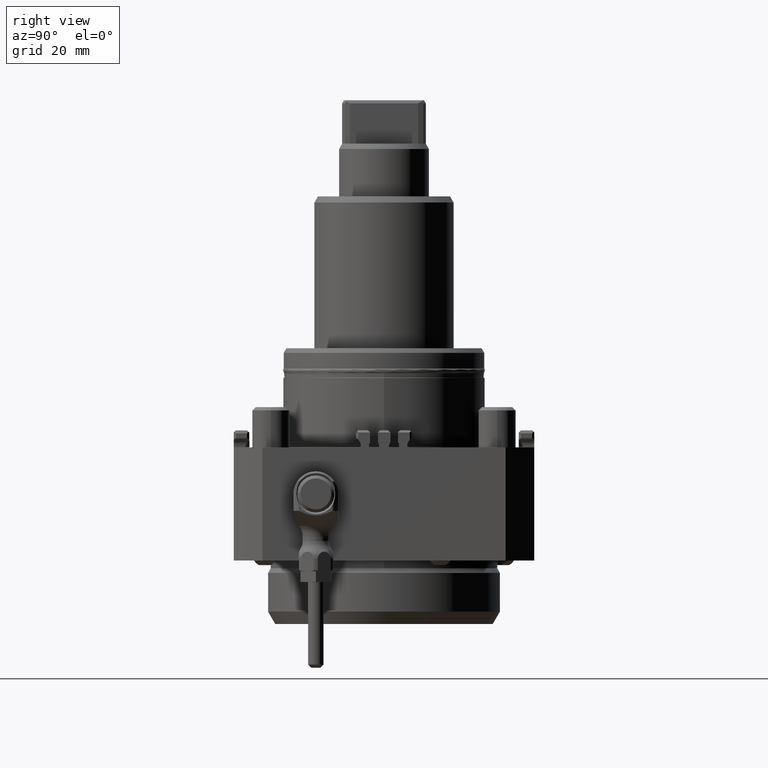
[diagram: clean part render]
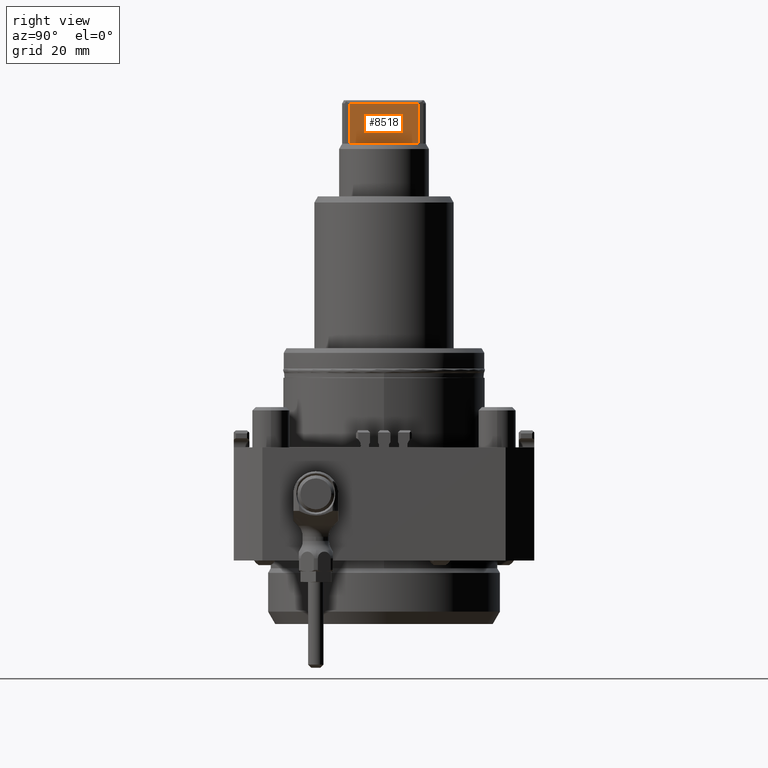
[diagram: same view with one face highlighted and labeled with its STEP entity id]
A machine part, right view. The second image highlights one B-rep face of the part: STEP entity #8518.
In plain terms, the highlighted planar face has unit normal (1, 0, -0).
Its self-contained STEP definition (entity closure, byte-faithful):
#8431=CARTESIAN_POINT('',(5.,-11.,111.));
#8432=VERTEX_POINT('',#8431);
#8439=CARTESIAN_POINT('',(5.,11.,111.));
#8440=VERTEX_POINT('',#8439);
#8441=CARTESIAN_POINT('',(5.,-11.,111.));
#8442=DIRECTION('',(-0.,1.,0.));
#8443=VECTOR('',#8442,22.);
#8444=LINE('',#8441,#8443);
#8445=EDGE_CURVE('',#8432,#8440,#8444,.T.);
#8462=CARTESIAN_POINT('',(5.,11.,98.));
#8463=VERTEX_POINT('',#8462);
#8464=CARTESIAN_POINT('',(5.,11.,111.));
#8465=DIRECTION('',(0.,0.,-1.));
#8466=VECTOR('',#8465,13.);
#8467=LINE('',#8464,#8466);
#8468=EDGE_CURVE('',#8440,#8463,#8467,.T.);
#8495=CARTESIAN_POINT('',(5.,15.,112.));
#8496=DIRECTION('',(1.,0.,-0.));
#8497=DIRECTION('',(0.,-1.,0.));
#8498=AXIS2_PLACEMENT_3D('',#8495,#8496,#8497);
#8499=PLANE('',#8498);
#8500=ORIENTED_EDGE('',*,*,#8445,.F.);
#8501=CARTESIAN_POINT('',(5.,-11.,98.));
#8502=VERTEX_POINT('',#8501);
#8503=CARTESIAN_POINT('',(5.,-11.,98.));
#8504=DIRECTION('',(0.,0.,1.));
#8505=VECTOR('',#8504,13.);
#8506=LINE('',#8503,#8505);
#8507=EDGE_CURVE('',#8502,#8432,#8506,.T.);
#8508=ORIENTED_EDGE('',*,*,#8507,.F.);
#8509=CARTESIAN_POINT('',(5.,-11.,98.));
#8510=DIRECTION('',(-0.,1.,0.));
#8511=VECTOR('',#8510,22.);
#8512=LINE('',#8509,#8511);
#8513=EDGE_CURVE('',#8502,#8463,#8512,.T.);
#8514=ORIENTED_EDGE('',*,*,#8513,.T.);
#8515=ORIENTED_EDGE('',*,*,#8468,.F.);
#8516=EDGE_LOOP('',(#8500,#8508,#8514,#8515));
#8517=FACE_BOUND('',#8516,.T.);
#8518=ADVANCED_FACE('',(#8517),#8499,.T.);